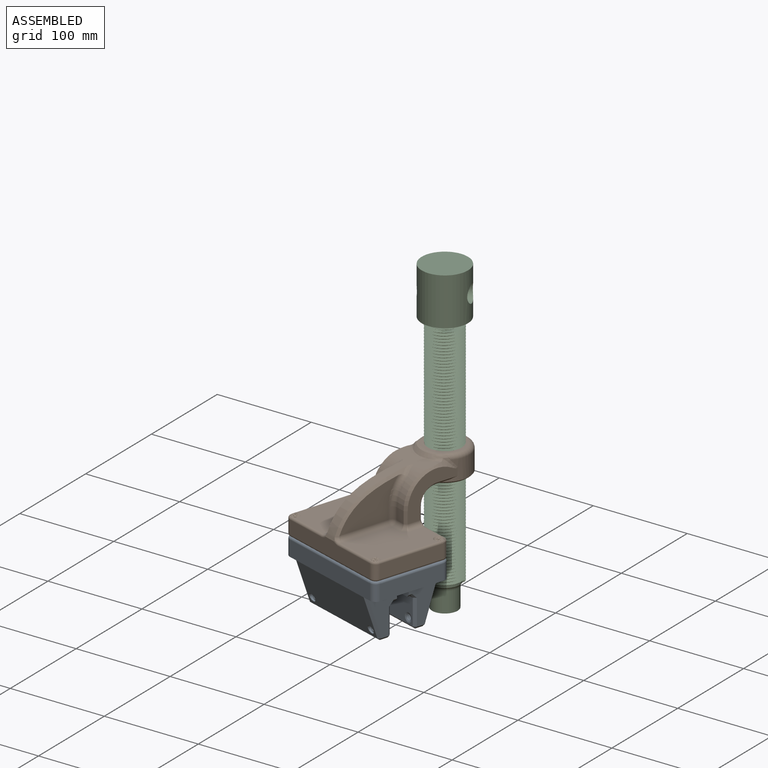
[diagram: assembled view]
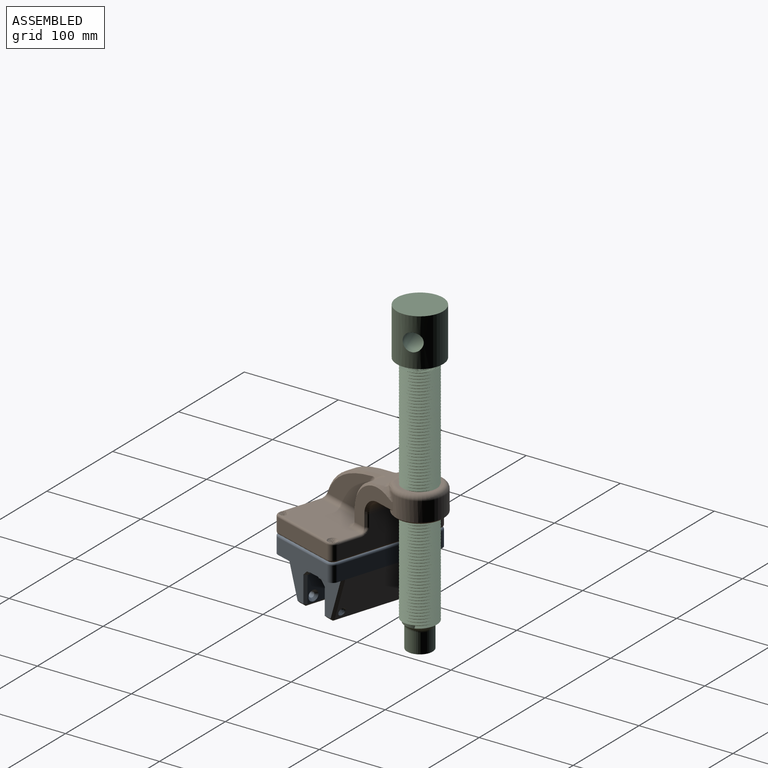
[diagram: assembled view, second angle]
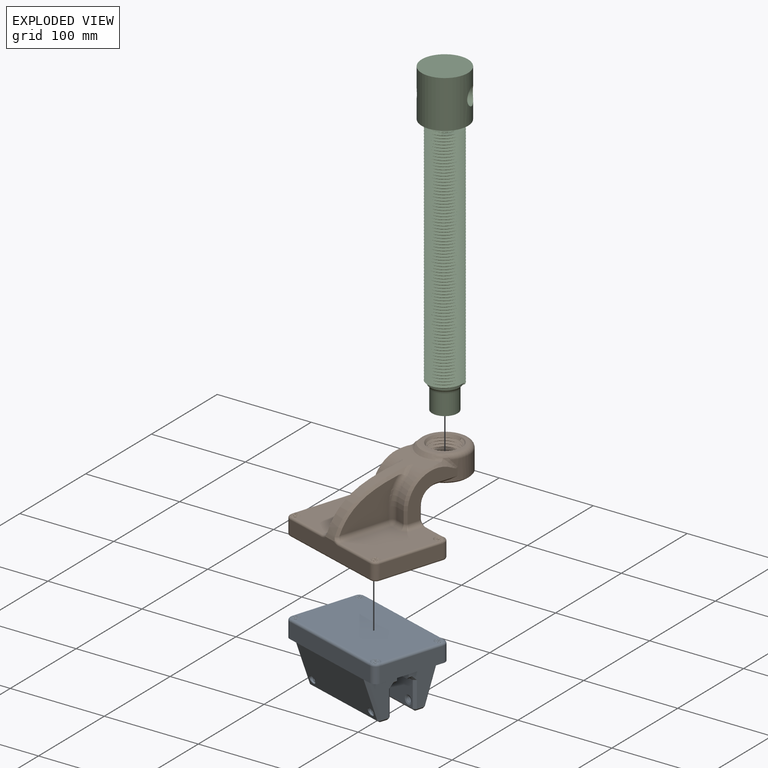
[diagram: exploded view]
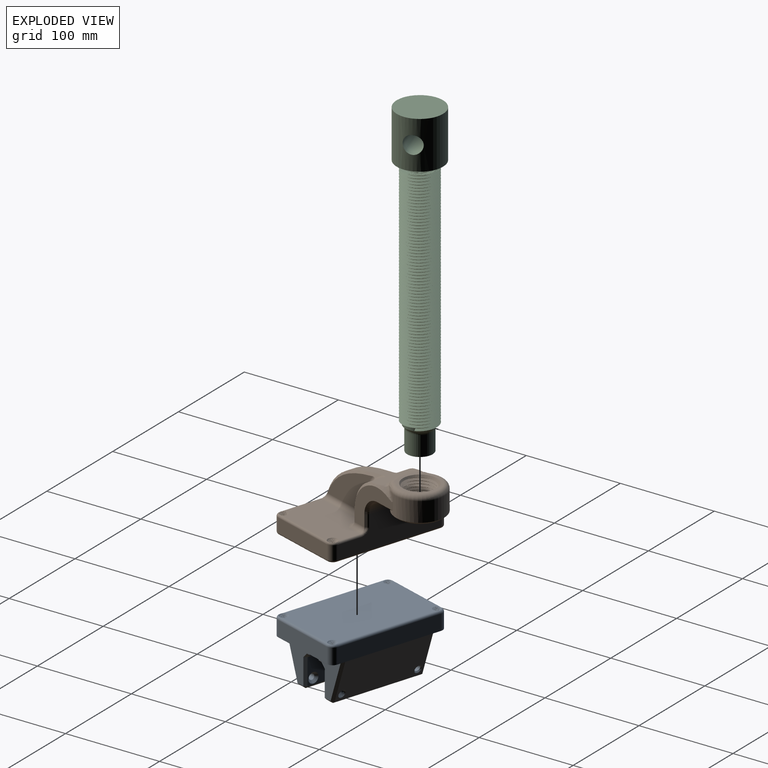
[diagram: exploded view, second angle]
ASSEMBLY  parts=3 mates=2
PART A: 113 faces, bbox 128.6x84.2x66 mm
  f0: bspline ~19.75x10.72mm, area 511mm2, adj f7,f8,f11,f38,f106,f108
  f1: plane 77.18x43.44mm, normal (-1,0,0), area 1666.1mm2, adj f8,f17,f18,f19,f63,f65,f70,f71
  f2: plane 77.18x43.44mm, normal (1,0,0), area 1666.1mm2, adj f9,f17,f18,f19,f67,f73,f77,f78
  f3: cylinder r=3mm len=9.83mm, axis (0,1,0), area 185.2mm2, adj f62,f97
  f4: cylinder r=3mm len=9.83mm, axis (0,1,0), area 185.2mm2, adj f60,f98
  f5: cylinder r=3mm len=2.6mm, axis (0,1,0), area 0.2mm2, adj f44,f50
  f6: cylinder r=4mm len=19.05mm, axis (0,0,1), area 25.9mm2, adj f8,f11,f40,f41
  f7: cylinder r=4mm len=19.05mm, axis (0,0,1), area 26mm2, adj f0,f8,f11,f38
  f8: plane 83.12x15.81mm, normal (0,0,-1), area 920.6mm2, adj f0,f1,f6,f7,f10,f12,f14,f26
  f9: plane 83.13x15.82mm, normal (0,0,-1), area 920.6mm2, adj f2,f10,f12,f13,f28,f29,f30,f31
  f10: plane 114.3x16.7mm, normal (0,1,0), area 1887.4mm2, adj f8,f9,f23,f26,f28,f101,f103
  f11: plane 122.4x77.96mm, normal (0,0,1), area 9204.9mm2, adj f0,f6,f7,f32,f33,f38,f39,f40
  f12: plane 114.3x16.7mm, normal (0,-1,0), area 1887.4mm2, adj f8,f9,f24,f27,f29,f108,f110
  f13: plane 69.85x16.7mm, normal (1,0,0), area 1153.8mm2, adj f9,f28,f29,f107,f109,f111
  f14: plane 69.85x16.51mm, normal (-1,0,0), area 1153.2mm2, adj f8,f26,f27,f104
  f15: plane 96.52x28.12mm, normal (0,1,0), area 2520.8mm2, adj f71,f72,f76,f77,f97,f98
  f16: plane 96.52x3.81mm, normal (0,0,-1), area 367.7mm2, adj f17,f70,f76,f79
  f17: plane 101.6x6.55mm, normal (0,1,0), area 658.8mm2, adj f1,f2,f16,f18,f70,f79
  f18: plane 101.6x12.7mm, normal (0,0,-1), area 1290.3mm2, adj f1,f2,f17,f19
  f19: plane 101.6x6.77mm, normal (0,-1,0), area 681.2mm2, adj f1,f2,f18,f20,f90,f96
  f20: plane 96.52x3.81mm, normal (0,0,-1), area 367.7mm2, adj f19,f90,f94,f96
  f21: plane 96.52x27.89mm, normal (0,-1,0), area 2546.7mm2, adj f88,f89,f93,f94,f99,f100
  f22: plane 96.52x8.35mm, normal (0,0,-1), area 805.9mm2, adj f83,f84,f87,f88
  f23: plane 96.53x44.28mm, normal (0,0.95,-0.33), area 4410.3mm2, adj f10,f44,f58,f80,f82,f83
  f24: plane 97.1x44.85mm, normal (0,-0.95,-0.33), area 4414mm2, adj f12,f59,f61,f63,f66,f67
  f25: plane 96.52x8.35mm, normal (0,0,-1), area 805.9mm2, adj f65,f66,f72,f73
  f26: cylinder r=6.35mm len=16.51mm, axis (0,0,1), area 164.7mm2, adj f8,f10,f14,f102
  f27: cylinder r=6.35mm len=16.51mm, axis (0,0,-1), area 164.7mm2, adj f8,f12,f14,f106
  f28: cylinder r=6.35mm len=16.7mm, axis (0,0,-1), area 166.5mm2, adj f9,f10,f13,f105
  f29: cylinder r=6.35mm len=16.7mm, axis (0,0,1), area 166.5mm2, adj f9,f12,f13,f112
  f30: cylinder r=4mm len=18.29mm, axis (0,0,1), area 9.7mm2, adj f9,f32,f36,f37
  f31: cylinder r=4mm len=18.29mm, axis (0,0,1), area 9.7mm2, adj f9,f33,f34,f35
  f32: cone r=4mm half-angle=45deg, axis (0,0,1), area 17.8mm2, adj f11,f30,f36,f37,f103,f105,f107
  f33: cone r=4mm half-angle=45deg, axis (0,0,1), area 17.8mm2, adj f11,f31,f34,f35,f110,f111,f112
  f34: bspline ~19.37x10.72mm, area 501.1mm2, adj f9,f31,f33,f35
  f35: bspline ~19.75x10.72mm, area 501.7mm2, adj f9,f31,f33,f34
  f36: bspline ~19.37x10.72mm, area 501.1mm2, adj f9,f30,f32,f37
  f37: bspline ~19.75x10.72mm, area 501.7mm2, adj f9,f30,f32,f36
  f38: bspline ~19.87x10.72mm, area 512.1mm2, adj f0,f7,f8,f11,f39,f104,f106
  f39: bspline ~4.02x2.64mm, area 0mm2, adj f11,f38,f104
  f40: bspline ~19.87x10.72mm, area 512.4mm2, adj f6,f8,f11,f41,f101,f102,f104
  f41: bspline ~19.75x10.72mm, area 512mm2, adj f6,f8,f11,f40,f104
  f42: cylinder r=3mm len=12.54mm, axis (0,1,0), area 12.6mm2, adj f43,f45,f46,f47
  f43: cone r=3.76mm half-angle=45deg, axis (0,-1,0), area 0.5mm2, adj f42,f100
  f44: bspline ~8.13x8.13mm, area 26.6mm2, adj f5,f23,f45,f46,f48,f49,f50,f51
  f45: bspline ~13.62x8.41mm, area 270.9mm2, adj f42,f44,f46,f47,f52,f55
  f46: bspline ~13.62x8.41mm, area 268.8mm2, adj f42,f44,f45,f47,f52,f54,f55
  f47: plane 0.74x0.64mm, normal (0,0,1), area 0.2mm2, adj f42,f45,f46
  f48: bspline ~7.36x7.28mm, area 9.1mm2, adj f44,f49,f54
  f49: bspline ~7.36x7.28mm, area 7.8mm2, adj f44,f48,f53
  f50: bspline ~7.28x4.2mm, area 5.2mm2, adj f5,f44,f51
  f51: bspline ~7.28x4.2mm, area 6.6mm2, adj f44,f50,f53
  f52: bspline ~7.26x2.85mm, area 0.6mm2, adj f45,f46
  f53: cylinder r=3mm len=5.56mm, axis (0,1,0), area 0mm2, adj f49,f51
  f54: cylinder r=3mm len=6mm, axis (0,1,0), area 0mm2, adj f46,f48
  f55: cylinder r=3mm len=6mm, axis (0,1,0), area 0mm2, adj f45,f46
  f56: cylinder r=3mm len=15.32mm, axis (0,1,0), area 288.8mm2, adj f57,f58
  f57: cone r=3mm half-angle=45deg, axis (0,-1,0), area 0.5mm2, adj f56,f99
  f58: bspline ~8.14x8.14mm, area 34.6mm2, adj f23,f56
  f59: cylinder r=4mm len=8mm, axis (0,-1,0), area 85.3mm2, adj f24,f60
  f60: plane 8x8mm, normal (0,-1,0), area 22mm2, adj f4,f59
  f61: cylinder r=4mm len=8mm, axis (0,-1,0), area 85.3mm2, adj f24,f62
  f62: plane 8x8mm, normal (0,-1,0), area 22mm2, adj f3,f61
  f63: plane 44.27x17.69mm, normal (-0.71,-0.67,-0.23), area 166.7mm2, adj f1,f8,f24,f64
  f64: plane 2.54x2.54mm, normal (-0.63,-0.45,-0.63), area 4.8mm2, adj f63,f65,f66
  f65: plane 8.35x2.54mm, normal (-0.71,0,-0.71), area 30mm2, adj f1,f25,f64,f68
  f66: plane 96.52x2.4mm, normal (0,-0.58,-0.81), area 284.6mm2, adj f24,f25,f64,f69
  f67: plane 44.27x17.69mm, normal (0.71,-0.67,-0.23), area 166.7mm2, adj f2,f9,f24,f69
  f68: plane 2.54x2.54mm, normal (-0.58,0.58,-0.58), area 5.6mm2, adj f65,f71,f72
  f69: plane 2.54x2.54mm, normal (0.63,-0.45,-0.63), area 4.8mm2, adj f66,f67,f73
  f70: plane 3.81x2.54mm, normal (-0.71,0,-0.71), area 13.7mm2, adj f1,f16,f17,f74
  f71: plane 28.12x2.54mm, normal (-0.71,0.71,0), area 101mm2, adj f1,f15,f68,f74
  f72: plane 96.52x2.54mm, normal (0,0.71,-0.71), area 346.7mm2, adj f15,f25,f68,f75
  f73: plane 8.35x2.54mm, normal (0.71,0,-0.71), area 30mm2, adj f2,f25,f69,f75
  f74: plane 5.08x5.08mm, normal (-0.58,0.58,-0.58), area 16.8mm2, adj f1,f70,f71,f76
  f75: plane 2.54x2.54mm, normal (0.58,0.58,-0.58), area 5.6mm2, adj f72,f73,f77
  f76: plane 96.52x2.54mm, normal (0,0.71,-0.71), area 346.7mm2, adj f15,f16,f74,f78
  f77: plane 28.12x2.54mm, normal (0.71,0.71,0), area 101mm2, adj f2,f15,f75,f78
  f78: plane 5.08x5.08mm, normal (0.58,0.58,-0.58), area 16.8mm2, adj f2,f76,f77,f79
  f79: plane 3.81x2.54mm, normal (0.71,0,-0.71), area 13.7mm2, adj f2,f16,f17,f78
  f80: plane 44.27x17.69mm, normal (-0.71,0.67,-0.23), area 166.7mm2, adj f1,f8,f23,f81
  f81: plane 2.54x2.54mm, normal (-0.63,0.45,-0.63), area 4.8mm2, adj f80,f83,f84
  f82: plane 44.27x17.69mm, normal (0.71,0.67,-0.23), area 166.7mm2, adj f2,f9,f23,f85
  f83: plane 96.52x2.4mm, normal (0,0.58,-0.81), area 284.6mm2, adj f22,f23,f81,f85
  f84: plane 8.35x2.54mm, normal (-0.71,0,-0.71), area 30mm2, adj f1,f22,f81,f86
  f85: plane 2.54x2.54mm, normal (0.63,0.45,-0.63), area 4.8mm2, adj f82,f83,f87
  f86: plane 2.54x2.54mm, normal (-0.58,-0.58,-0.58), area 5.6mm2, adj f84,f88,f89
  f87: plane 8.35x2.54mm, normal (0.71,0,-0.71), area 30mm2, adj f2,f22,f85,f91
  f88: plane 96.52x2.54mm, normal (0,-0.71,-0.71), area 346.7mm2, adj f21,f22,f86,f91
  f89: plane 27.89x2.54mm, normal (-0.71,-0.71,0), area 100.2mm2, adj f1,f21,f86,f92
  f90: plane 3.81x2.54mm, normal (-0.71,0,-0.71), area 13.7mm2, adj f1,f19,f20,f92
  f91: plane 2.54x2.54mm, normal (0.58,-0.58,-0.58), area 5.6mm2, adj f87,f88,f93
  f92: plane 5.08x5.08mm, normal (-0.58,-0.58,-0.58), area 16.8mm2, adj f1,f89,f90,f94
  f93: plane 27.89x2.54mm, normal (0.71,-0.71,0), area 100.2mm2, adj f2,f21,f91,f95
  f94: plane 96.52x2.54mm, normal (0,-0.71,-0.71), area 346.7mm2, adj f20,f21,f92,f95
  f95: plane 5.08x5.08mm, normal (0.58,-0.58,-0.58), area 16.8mm2, adj f2,f93,f94,f96
  f96: plane 3.81x2.54mm, normal (0.71,0,-0.71), area 13.7mm2, adj f2,f19,f20,f95
  f97: cone r=5.54mm half-angle=45deg, axis (0,1,0), area 96.4mm2, adj f3,f15
  f98: cone r=3mm half-angle=45deg, axis (0,1,0), area 96.4mm2, adj f4,f15
  f99: cone r=4.81mm half-angle=67.5deg, axis (0,-1,0), area 47.8mm2, adj f21,f57
  f100: cone r=4.81mm half-angle=67.5deg, axis (0,-1,0), area 47.8mm2, adj f21,f43
  f101: cylinder r=2.54mm len=111.44mm, axis (-1,0,0), area 444.1mm2, adj f10,f11,f40,f102,f103
  f102: torus R=3.81mm, axis (0,0,1), area 29.7mm2, adj f26,f40,f101,f104
  f103: bspline ~3.9x2.76mm, area 9.5mm2, adj f10,f32,f101,f105
  f104: cylinder r=2.54mm len=69.85mm, axis (0,-1,0), area 276.2mm2, adj f11,f14,f38,f39,f40,f41,f102,f106
  f105: torus R=3.81mm, axis (0,0,1), area 27.4mm2, adj f28,f32,f103,f107
  f106: torus R=3.81mm, axis (0,0,1), area 29.5mm2, adj f0,f27,f38,f104,f108
  f107: bspline ~3.9x2.76mm, area 9.5mm2, adj f13,f32,f105,f109
  f108: cylinder r=2.54mm len=111.44mm, axis (1,0,0), area 444.3mm2, adj f0,f11,f12,f106,f110
  f109: cylinder r=2.54mm len=64.14mm, axis (0,1,0), area 255.9mm2, adj f11,f13,f107,f111
  f110: bspline ~3.9x2.76mm, area 9.5mm2, adj f12,f33,f108,f112
  f111: bspline ~3.9x2.76mm, area 9.5mm2, adj f13,f33,f109,f112
  f112: torus R=3.81mm, axis (0,0,1), area 27.4mm2, adj f29,f33,f110,f111
PART B: 132 faces, bbox 160.2x129.9x79.9 mm
  f0: plane 78.25x48.49mm, normal (0,0,1), area 3270.2mm2, adj f37,f38,f39,f40,f75,f76,f78,f79
  f1: cylinder r=25.98mm len=51.96mm, axis (0,0,-1), area 2170.1mm2, adj f16,f18,f19,f46,f49,f54,f66,f67
  f2: plane 122.92x78.47mm, normal (0,0,-1), area 9307mm2, adj f34,f35,f36,f37,f38,f39,f40,f42
  f3: plane 2.02x1.97mm, normal (0,0,1), area 0.1mm2, adj f37,f38,f102
  f4: plane 4.16x3.31mm, normal (0,0,1), area 6.3mm2, adj f12,f52,f61
  f5: plane 12.4x9.84mm, normal (-1,0,0), area 122mm2, adj f6,f53,f57,f79
  f6: cylinder r=34.92mm len=32.75mm, axis (0,1,0), area 456.1mm2, adj f5,f12,f52,f58,f65
  f7: plane 78.21x48.46mm, normal (0,0,1), area 3257.7mm2, adj f34,f35,f36,f41,f69,f70,f71,f73
  f8: plane 114.3x16.78mm, normal (-1,0,0), area 1691.3mm2, adj f12,f25,f27,f88,f90,f96,f97,f98
  f9: plane 114.3x34.26mm, normal (1,0,0), area 2552.6mm2, adj f15,f24,f26,f91,f93,f103,f104,f105
  f10: plane 69.85x14.82mm, normal (0,-1,0), area 1011.9mm2, adj f26,f27,f94,f114,f115,f116
  f11: plane 69.85x14.55mm, normal (0,1,0), area 1011.4mm2, adj f24,f25,f82,f83,f84,f85,f100,f101
  f12: extruded ~101.83x52.43mm, area 1744.5mm2, adj f4,f6,f8,f13,f17,f50,f52,f55
  f13: cylinder r=34.92mm len=32.75mm, axis (0,1,0), area 456.1mm2, adj f12,f14,f50,f59,f64
  f14: plane 12.4x9.84mm, normal (-1,0,0), area 122mm2, adj f13,f51,f60,f73
  f15: cylinder r=15.88mm len=43.83mm, axis (0,1,0), area 1092.9mm2, adj f9,f16,f107,f123
  f16: plane 43.83x14.04mm, normal (0,0,-1), area 243.5mm2, adj f1,f15,f108,f124
  f17: plane 4.16x3.31mm, normal (0,0,1), area 6.3mm2, adj f12,f50,f63
  f18: plane 54.91x44.78mm, normal (0,-1,0), area 987.2mm2, adj f1,f47,f48,f49,f50,f51,f67,f69
  f19: plane 54.91x44.78mm, normal (0,1,0), area 987.2mm2, adj f1,f44,f45,f46,f52,f53,f66,f76
  f20: plane 67.04x42.17mm, normal (0,-1,0), area 1466.5mm2, adj f56,f59,f60,f70
  f21: plane 67.04x42.17mm, normal (0,1,0), area 1466.5mm2, adj f55,f57,f58,f75
  f22: plane 44.5x44.5mm, normal (0,0,-1), area 518.2mm2, adj f28,f31,f32,f131
  f23: plane 42.89x41.8mm, normal (0,0,1), area 392.6mm2, adj f30,f125,f126,f127,f128,f129,f130
  f24: cylinder r=6.35mm len=14.55mm, axis (0,0,1), area 144.9mm2, adj f9,f11,f87,f89,f102
  f25: cylinder r=6.35mm len=14.58mm, axis (0,0,-1), area 145mm2, adj f8,f11,f86,f99
  f26: cylinder r=6.35mm len=14.82mm, axis (0,0,-1), area 147.8mm2, adj f9,f10,f95,f117
  f27: cylinder r=6.35mm len=14.55mm, axis (0,0,1), area 145mm2, adj f8,f10,f92,f112,f113
  f28: cylinder r=15.81mm len=31.62mm, axis (0,0,1), area 225mm2, adj f22,f29,f31,f32
  f29: cone r=15.81mm half-angle=35deg, axis (0,0,1), area 4.2mm2, adj f28,f30,f31,f32
  f30: cone r=15.81mm half-angle=35deg, axis (0,0,1), area 268.7mm2, adj f23,f29,f32,f33
  f31: bspline ~42.31x36.64mm, area 2738.2mm2, adj f22,f28,f29,f32,f33
  f32: bspline ~42.31x36.64mm, area 2837.4mm2, adj f22,f28,f29,f30,f31,f33
  f33: plane 2.04x1.68mm, normal (0,-1,0), area 1mm2, adj f30,f31,f32
  f34: cylinder r=4mm len=19.05mm, axis (0,0,1), area 15.1mm2, adj f2,f7,f35,f36
  f35: bspline ~19.87x10.72mm, area 512.7mm2, adj f2,f7,f34,f36,f90,f92,f113,f114
  f36: bspline ~19.87x10.72mm, area 511.9mm2, adj f2,f7,f34,f35,f111,f112
  f37: bspline ~19.87x10.72mm, area 512.3mm2, adj f0,f2,f3,f38,f85,f87,f102,f103
  f38: bspline ~19.79x9.28mm, area 515.1mm2, adj f0,f2,f3,f37,f89,f91,f101,f102
  f39: bspline ~19.87x10.72mm, area 512.3mm2, adj f0,f2,f40,f84,f86,f88
  f40: bspline ~19.79x9.28mm, area 515mm2, adj f0,f2,f39,f82,f98,f99,f100
  f41: cone r=4mm half-angle=45deg, axis (0,0,1), area 40.5mm2, adj f7,f42,f43,f116,f117,f118
  f42: bspline ~18.87x10.72mm, area 486.4mm2, adj f2,f41,f43
  f43: bspline ~19.16x9.28mm, area 487.6mm2, adj f2,f41,f42,f93,f95
  f44: plane 12.4x1.87mm, normal (0.71,0.71,0), area 32.8mm2, adj f19,f45,f74,f106
  f45: cone r=15.88mm half-angle=45deg, axis (0,1,0), area 72.6mm2, adj f19,f44,f46,f107
  f46: plane 22.84x2.18mm, normal (0,0.71,-0.71), area 51.3mm2, adj f1,f19,f45,f108
  f47: plane 12.4x1.87mm, normal (0.71,-0.71,0), area 32.8mm2, adj f18,f48,f68,f122
  f48: cone r=18.41mm half-angle=45deg, axis (0,-1,0), area 72.6mm2, adj f18,f47,f49,f123
  f49: plane 22.84x2.18mm, normal (0,-0.71,-0.71), area 51.3mm2, adj f1,f18,f48,f124
  f50: cone r=34.92mm half-angle=45deg, axis (0,1,0), area 249.2mm2, adj f12,f13,f17,f18,f51,f63,f67
  f51: plane 12.4x2.54mm, normal (-0.71,-0.71,0), area 44.5mm2, adj f14,f18,f50,f71
  f52: cone r=32.38mm half-angle=45deg, axis (0,-1,0), area 249.2mm2, adj f4,f6,f12,f19,f53,f61,f66
  f53: plane 12.4x2.54mm, normal (-0.71,0.71,0), area 44.5mm2, adj f5,f19,f52,f78
  f54: cone r=23.44mm half-angle=45deg, axis (0,0,1), area 238mm2, adj f1,f131
  f55: bspline ~92.27x52.6mm, area 332.7mm2, adj f12,f21,f58,f65,f75,f80
  f56: bspline ~92.27x52.6mm, area 332.7mm2, adj f12,f20,f59,f64,f70,f81
  f57: cylinder r=5.08mm len=12.4mm, axis (0,0,1), area 98.9mm2, adj f5,f21,f58,f77
  f58: torus R=40mm, axis (0,-1,0), area 239.9mm2, adj f6,f21,f55,f57,f65
  f59: torus R=40mm, axis (0,-1,0), area 239.9mm2, adj f13,f20,f56,f60,f64
  f60: cylinder r=5.08mm len=12.4mm, axis (0,0,-1), area 98.9mm2, adj f14,f20,f59,f72
  f61: torus R=31.05mm, axis (0,0,1), area 29.7mm2, adj f4,f12,f52,f62,f66,f126,f128,f130
  f62: bspline ~39.02x10.66mm, area 170.1mm2, adj f12,f61,f63,f126
  f63: torus R=31.05mm, axis (0,0,1), area 29.7mm2, adj f12,f17,f50,f62,f67,f125,f126,f127
  f64: bspline ~17.68x10.84mm, area 51.2mm2, adj f12,f13,f56,f59
  f65: bspline ~17.69x10.84mm, area 51.2mm2, adj f6,f12,f55,f58
  f66: bspline ~19.63x18.19mm, area 66.7mm2, adj f1,f19,f52,f61,f130
  f67: bspline ~19.63x18.19mm, area 66.7mm2, adj f1,f18,f50,f63,f127
  f68: cylinder r=5.08mm len=4.11mm, axis (-0.71,-0.71,0), area 6.4mm2, adj f47,f69,f120,f121
  f69: cylinder r=5.08mm len=16.33mm, axis (-1,0,0), area 121.6mm2, adj f7,f18,f68,f71,f120
  f70: cylinder r=5.08mm len=56.1mm, axis (-1,0,0), area 438.5mm2, adj f7,f20,f56,f72,f81
  f71: cylinder r=5.08mm len=9.11mm, axis (-0.71,0.71,0), area 45.5mm2, adj f7,f51,f69,f73
  f72: sphere r=5.08mm, area 25.8mm2, adj f60,f70,f73
  f73: cylinder r=5.08mm len=11.95mm, axis (0,-1,0), area 86.9mm2, adj f7,f14,f71,f72
  f74: cylinder r=5.08mm len=4.11mm, axis (-0.71,0.71,0), area 6.4mm2, adj f44,f76,f104,f105
  f75: cylinder r=5.08mm len=56.1mm, axis (1,0,0), area 438.5mm2, adj f0,f21,f55,f77,f80
  f76: cylinder r=5.08mm len=16.33mm, axis (1,0,0), area 121.6mm2, adj f0,f19,f74,f78,f104
  f77: sphere r=5.08mm, area 40.5mm2, adj f57,f75,f79
  f78: cylinder r=5.08mm len=9.11mm, axis (-0.71,-0.71,0), area 45.5mm2, adj f0,f53,f76,f79
  f79: cylinder r=5.08mm len=11.95mm, axis (0,-1,0), area 86.9mm2, adj f0,f5,f77,f78
  f80: bspline ~9.47x9.31mm, area 18.1mm2, adj f0,f12,f55,f75,f96
  f81: bspline ~9.85x9.67mm, area 18.1mm2, adj f7,f12,f56,f70,f109
  f82: bspline ~2.45x2.45mm, area 4.8mm2, adj f11,f40,f83,f84
  f83: cylinder r=2.29mm len=65.78mm, axis (1,0,0), area 236.2mm2, adj f2,f11,f82,f85
  f84: bspline ~2.24x1.84mm, area 2mm2, adj f11,f39,f82,f86
  f85: bspline ~3.75x2.79mm, area 6.3mm2, adj f11,f37,f83,f87
  f86: bspline ~7.93x7.13mm, area 28.5mm2, adj f25,f39,f84,f88
  f87: bspline ~2.22x1.76mm, area 2.5mm2, adj f24,f37,f85,f89
  f88: bspline ~2.41x2.39mm, area 4mm2, adj f8,f39,f86,f90
  f89: bspline ~6.72x6.09mm, area 25.7mm2, adj f24,f38,f87,f91
  f90: cylinder r=2.29mm len=113.13mm, axis (0,1,0), area 406mm2, adj f2,f8,f35,f88,f92
  f91: bspline ~2.5x2.49mm, area 4.6mm2, adj f9,f38,f89,f93
  f92: torus R=4.06mm, axis (0,0,1), area 30.6mm2, adj f2,f27,f35,f90,f94
  f93: cylinder r=2.29mm len=112.95mm, axis (0,-1,0), area 405.2mm2, adj f2,f9,f43,f91,f95
  f94: cylinder r=2.29mm len=69.85mm, axis (-1,0,0), area 250.8mm2, adj f2,f10,f92,f95
  f95: torus R=4.06mm, axis (0,0,1), area 30.4mm2, adj f2,f26,f43,f93,f94
  f96: bspline ~10.77x5.72mm, area 22.9mm2, adj f8,f12,f80,f97
  f97: cylinder r=2.29mm len=42.06mm, axis (0,-1,0), area 151mm2, adj f0,f8,f96,f98
  f98: bspline ~3.12x2.43mm, area 7mm2, adj f8,f40,f97,f99
  f99: bspline ~7.18x6.58mm, area 29.4mm2, adj f25,f40,f98,f100
  f100: bspline ~2.29x2.29mm, area 2.3mm2, adj f11,f40,f99,f101
  f101: cylinder r=2.29mm len=69.19mm, axis (-1,0,0), area 248.4mm2, adj f0,f11,f38,f100,f102
  f102: torus R=4.06mm, axis (0,0,1), area 31mm2, adj f3,f24,f37,f38,f101,f103
  f103: cylinder r=2.29mm len=26.67mm, axis (0,1,0), area 95.7mm2, adj f0,f9,f37,f102,f104
  f104: torus R=7.37mm, axis (1,0,0), area 15.2mm2, adj f9,f74,f76,f103,f105
  f105: bspline ~7.82x6.35mm, area 13.9mm2, adj f9,f74,f104,f106
  f106: cylinder r=2.29mm len=12.4mm, axis (0,0,1), area 22.3mm2, adj f9,f44,f105,f107
  f107: torus R=18.16mm, axis (0,-1,0), area 45.4mm2, adj f15,f45,f106,f108
  f108: cylinder r=2.29mm len=16.98mm, axis (1,0,0), area 27.8mm2, adj f1,f16,f46,f107
  f109: bspline ~10.77x5.72mm, area 22.9mm2, adj f8,f12,f81,f110
  f110: cylinder r=2.29mm len=42.49mm, axis (0,-1,0), area 152.6mm2, adj f7,f8,f109,f111
  f111: bspline ~2.62x2.38mm, area 5.5mm2, adj f8,f36,f110,f112
  f112: bspline ~5.86x3.27mm, area 14mm2, adj f27,f36,f111,f113
  f113: bspline ~6.24x3.46mm, area 13.9mm2, adj f27,f35,f112,f114
  f114: bspline ~2.37x2.35mm, area 5.5mm2, adj f10,f35,f113,f115
  f115: cylinder r=2.29mm len=64.81mm, axis (1,0,0), area 232.7mm2, adj f7,f10,f114,f116
  f116: bspline ~3.87x2.4mm, area 9.2mm2, adj f10,f41,f115,f117
  f117: torus R=4.06mm, axis (0,0,1), area 21.8mm2, adj f26,f41,f116,f118
  f118: bspline ~3.87x2.4mm, area 9.2mm2, adj f9,f41,f117,f119
  f119: cylinder r=2.29mm len=23.31mm, axis (0,1,0), area 83.7mm2, adj f7,f9,f118,f120
  f120: torus R=7.37mm, axis (1,0,0), area 15.2mm2, adj f9,f68,f69,f119,f121
  f121: bspline ~6.86x6.35mm, area 13.9mm2, adj f9,f68,f120,f122
  f122: cylinder r=2.29mm len=12.4mm, axis (0,0,1), area 22.3mm2, adj f9,f47,f121,f123
  f123: torus R=18.16mm, axis (0,1,0), area 45.4mm2, adj f15,f48,f122,f124
  f124: cylinder r=2.29mm len=16.98mm, axis (1,0,0), area 27.8mm2, adj f1,f16,f49,f123
  f125: torus R=22.45mm, axis (0,0,-1), area 25.8mm2, adj f23,f63,f126,f127
  f126: bspline ~34.27x9.65mm, area 167.9mm2, adj f23,f61,f62,f63,f125,f128
  f127: bspline ~10.02x7.95mm, area 44.9mm2, adj f23,f63,f67,f125,f129
  f128: torus R=22.45mm, axis (0,0,-1), area 25.8mm2, adj f23,f61,f126,f130
  f129: torus R=20.9mm, axis (0,0,1), area 786.3mm2, adj f1,f23,f127,f130
  f130: bspline ~11.69x9.23mm, area 44.9mm2, adj f23,f61,f66,f128,f129
  f131: torus R=21.34mm, axis (0,0,1), area 582.4mm2, adj f22,f54
PART C: 18 faces, bbox 51.4x51.4x332.4 mm
  f0: bspline ~254.25x42.45mm, area 26809.4mm2, adj f1,f2,f3,f4
  f1: bspline ~255.75x42.45mm, area 26940.4mm2, adj f0,f2,f3,f4
  f2: cylinder r=15.81mm len=254mm, axis (0,0,-1), area -12946.3mm2, adj f0,f1,f3,f4,f10
  f3: plane 2.97x2.57mm, normal (0,1,0), area 3.8mm2, adj f0,f1,f2
  f4: plane 51.42x51.42mm, normal (0,0,1), area 987.6mm2, adj f0,f1,f2,f5
  f5: cylinder r=24.63mm len=50.8mm, axis (0,0,1), area 7281.3mm2, adj f4,f6,f7
  f6: plane 49.27x49.27mm, normal (0,0,-1), area 1906.4mm2, adj f5
  f7: cylinder r=9.53mm len=49.27mm, axis (1,0,0), area 2948.5mm2, adj f5
  f8: cylinder r=13.6mm len=27.2mm, axis (0,0,-1), area 1811.9mm2, adj f9,f10
  f9: plane 27.2x27.2mm, normal (0,0,1), area 170.4mm2, adj f8,f13
  f10: torus R=18.68mm, axis (0,0,-1), area 444.8mm2, adj f2,f8
  f11: cylinder r=6.35mm len=45.72mm, axis (0,0,1), area -165.4mm2, adj f12,f13,f16,f17
  f12: plane 12.7x12.7mm, normal (0,0,1), area 126.7mm2, adj f11,f14
  f13: cone r=6.35mm half-angle=45deg, axis (0,0,1), area 349.5mm2, adj f9,f11,f16,f17
  f14: cylinder r=6.35mm len=12.7mm, axis (0,0,-1), area 38.8mm2, adj f12,f15,f16
  f15: plane 1.95x1.69mm, normal (0.05,1,0), area 1.6mm2, adj f14,f16,f17
  f16: bspline ~49.81x18.57mm, area 2170mm2, adj f11,f13,f14,f15,f17
  f17: bspline ~49.81x18.57mm, area 2125.5mm2, adj f11,f13,f15,f16
PLACE A rot(axis=(0,0,-1),17.5deg) t=(-227.89,-45.96,23.96)mm
PLACE B rot(axis=(0,0,1),72.5deg) t=(-227.96,-45.94,43.01)mm fixed
PLACE C rot(axis=(0.98,0.17,0),180deg) t=(-202.43,35.28,103.82)mm
MATE fastened B.f2 <-> A.f11  axis (0,0,-1) through (-227.99,-45.93,33.49)mm
MATE cylindrical C.f2 <-> B.f1  axis (0,0,1) through (-202.43,35.28,-27.37)mm
